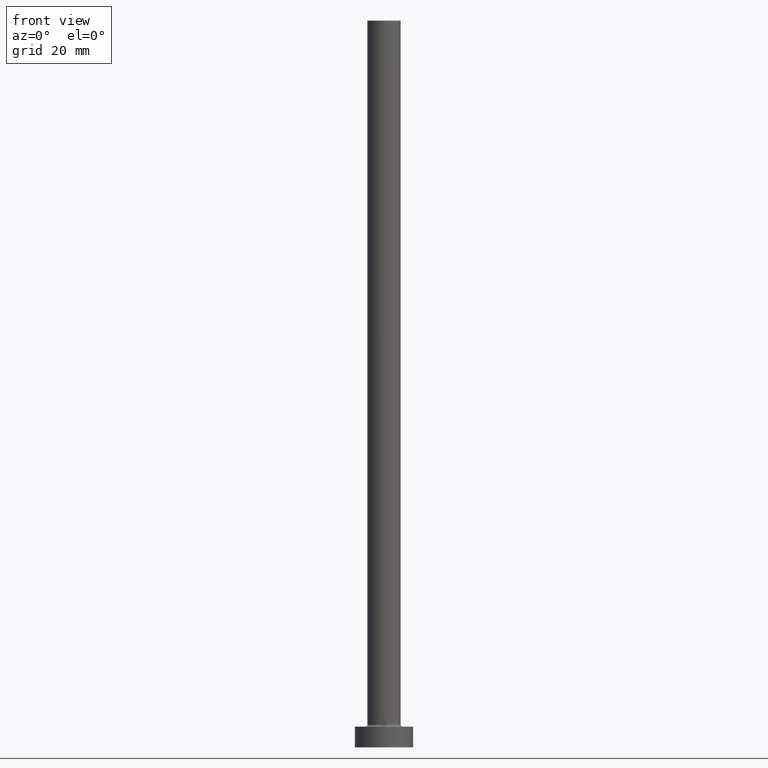
[diagram: clean part render]
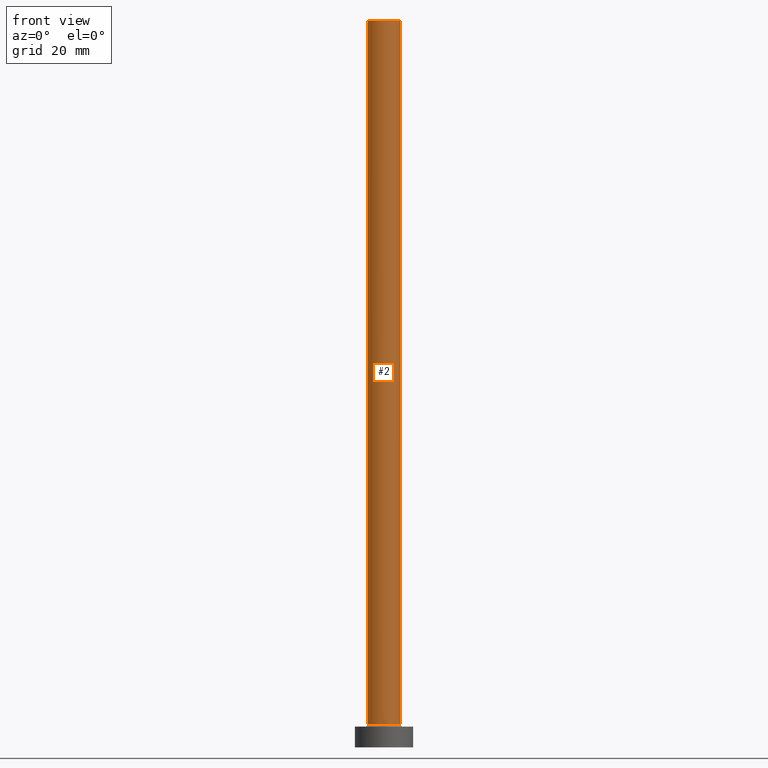
[diagram: same view with one face highlighted and labeled with its STEP entity id]
A machine part, front view. The second image highlights one B-rep face of the part: STEP entity #2.
In plain terms, the highlighted cylindrical surface (edge-blend (fillet) strip) has radius 4 mm, axis along (-0, -0, -1).
Its self-contained STEP definition (entity closure, byte-faithful):
#2 = ADVANCED_FACE ( 'NONE', ( #11 ), #123, .T. ) ;
#4 = CARTESIAN_POINT ( 'NONE',  ( 4.000000000000000000, 4.898587196589412829E-16, 175.0000000000000284 ) ) ;
#11 = FACE_OUTER_BOUND ( 'NONE', #432, .T. ) ;
#12 = VECTOR ( 'NONE', #369, 1000.000000000000000 ) ;
#21 = EDGE_CURVE ( 'NONE', #85, #201, #270, .T. ) ;
#33 = AXIS2_PLACEMENT_3D ( 'NONE', #366, #264, #125 ) ;
#37 = VERTEX_POINT ( 'NONE', #139 ) ;
#51 = EDGE_CURVE ( 'NONE', #225, #85, #231, .T. ) ;
#53 = CARTESIAN_POINT ( 'NONE',  ( -4.000000000000000000, 0.000000000000000000, 175.0000000000000284 ) ) ;
#69 = CARTESIAN_POINT ( 'NONE',  ( 0.000000000000000000, 0.000000000000000000, 5.500000000000005329 ) ) ;
#82 = DIRECTION ( 'NONE',  ( -0.000000000000000000, -0.000000000000000000, -1.000000000000000000 ) ) ;
#85 = VERTEX_POINT ( 'NONE', #408 ) ;
#111 = CARTESIAN_POINT ( 'NONE',  ( 4.000000000000000000, 4.898587196589412829E-16, 5.500000000000005329 ) ) ;
#115 = AXIS2_PLACEMENT_3D ( 'NONE', #431, #192, #237 ) ;
#123 = CYLINDRICAL_SURFACE ( 'NONE', #33, 4.000000000000000000 ) ;
#125 = DIRECTION ( 'NONE',  ( -1.000000000000000000, 0.000000000000000000, 0.000000000000000000 ) ) ;
#139 = CARTESIAN_POINT ( 'NONE',  ( 4.000000000000000000, 4.898587196589412829E-16, 175.0000000000000284 ) ) ;
#157 = ORIENTED_EDGE ( 'NONE', *, *, #51, .T. ) ;
#175 = DIRECTION ( 'NONE',  ( 1.000000000000000000, 0.000000000000000000, 0.000000000000000000 ) ) ;
#183 = CARTESIAN_POINT ( 'NONE',  ( -4.000000000000000000, 0.000000000000000000, 175.0000000000000284 ) ) ;
#187 = AXIS2_PLACEMENT_3D ( 'NONE', #69, #286, #175 ) ;
#191 = ORIENTED_EDGE ( 'NONE', *, *, #21, .T. ) ;
#192 = DIRECTION ( 'NONE',  ( 0.000000000000000000, 0.000000000000000000, 1.000000000000000000 ) ) ;
#201 = VERTEX_POINT ( 'NONE', #111 ) ;
#224 = EDGE_CURVE ( 'NONE', #37, #201, #354, .T. ) ;
#225 = VERTEX_POINT ( 'NONE', #183 ) ;
#230 = VECTOR ( 'NONE', #82, 1000.000000000000000 ) ;
#231 = LINE ( 'NONE', #53, #12 ) ;
#237 = DIRECTION ( 'NONE',  ( 1.000000000000000000, 0.000000000000000000, 0.000000000000000000 ) ) ;
#264 = DIRECTION ( 'NONE',  ( -0.000000000000000000, -0.000000000000000000, -1.000000000000000000 ) ) ;
#270 = CIRCLE ( 'NONE', #187, 4.000000000000000000 ) ;
#286 = DIRECTION ( 'NONE',  ( 0.000000000000000000, 0.000000000000000000, 1.000000000000000000 ) ) ;
#315 = CIRCLE ( 'NONE', #115, 4.000000000000000000 ) ;
#328 = EDGE_CURVE ( 'NONE', #225, #37, #315, .T. ) ;
#354 = LINE ( 'NONE', #4, #230 ) ;
#364 = ORIENTED_EDGE ( 'NONE', *, *, #224, .F. ) ;
#366 = CARTESIAN_POINT ( 'NONE',  ( 0.000000000000000000, 0.000000000000000000, 175.0000000000000284 ) ) ;
#369 = DIRECTION ( 'NONE',  ( -0.000000000000000000, -0.000000000000000000, -1.000000000000000000 ) ) ;
#408 = CARTESIAN_POINT ( 'NONE',  ( -4.000000000000000000, 0.000000000000000000, 5.500000000000005329 ) ) ;
#431 = CARTESIAN_POINT ( 'NONE',  ( 0.000000000000000000, 0.000000000000000000, 175.0000000000000284 ) ) ;
#432 = EDGE_LOOP ( 'NONE', ( #364, #447, #157, #191 ) ) ;
#447 = ORIENTED_EDGE ( 'NONE', *, *, #328, .F. ) ;